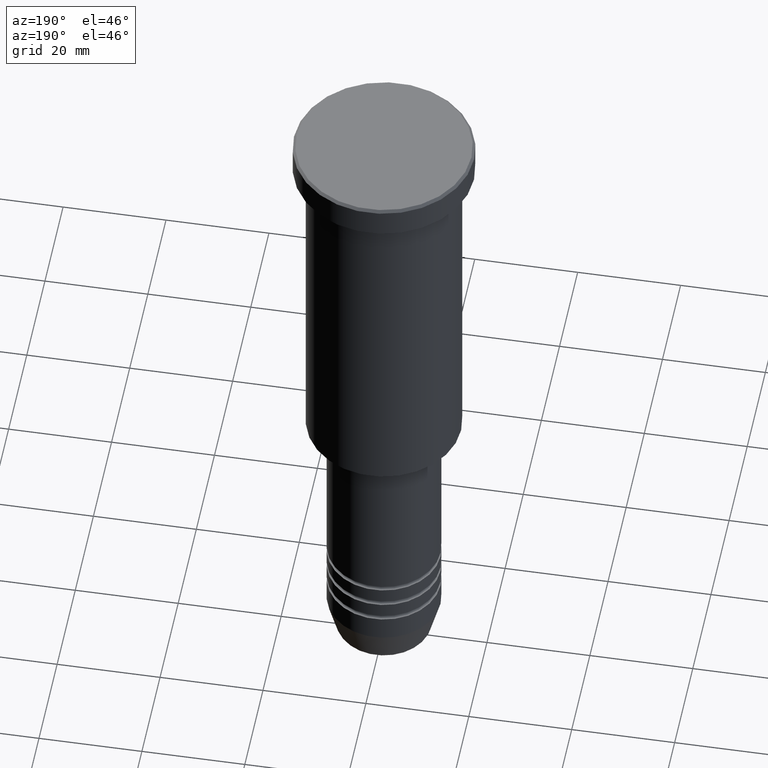
[diagram: clean part render]
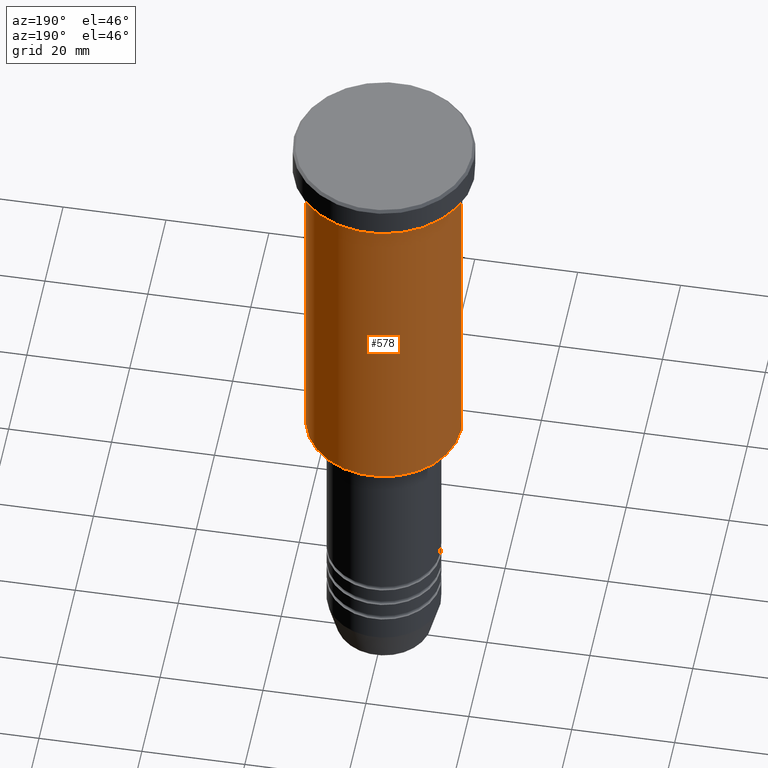
[diagram: same view with one face highlighted and labeled with its STEP entity id]
A machine part, auxiliary view. The second image highlights one B-rep face of the part: STEP entity #578.
In plain terms, the highlighted cylindrical surface (partial cylindrical patch) has radius 15 mm, axis along (-0, -0, 1).
Its self-contained STEP definition (entity closure, byte-faithful):
#89 = ORIENTED_EDGE ( 'NONE', *, *, #228, .F. ) ;
#199 = CARTESIAN_POINT ( 'NONE',  ( 0.000000000000000000, 0.000000000000000000, -6.999999999999995559 ) ) ;
#207 = DIRECTION ( 'NONE',  ( 1.000000000000000000, 0.000000000000000000, 0.000000000000000000 ) ) ;
#222 = CARTESIAN_POINT ( 'NONE',  ( 15.00000000000000000, 0.000000000000000000, 0.000000000000000000 ) ) ;
#228 = EDGE_CURVE ( 'NONE', #800, #318, #1106, .T. ) ;
#256 = EDGE_CURVE ( 'NONE', #928, #330, #777, .T. ) ;
#306 = ORIENTED_EDGE ( 'NONE', *, *, #861, .F. ) ;
#318 = VERTEX_POINT ( 'NONE', #400 ) ;
#320 = LINE ( 'NONE', #222, #782 ) ;
#330 = VERTEX_POINT ( 'NONE', #595 ) ;
#349 = DIRECTION ( 'NONE',  ( -0.000000000000000000, -0.000000000000000000, 1.000000000000000000 ) ) ;
#400 = CARTESIAN_POINT ( 'NONE',  ( -15.00000000000000000, 1.836970198721029589E-15, -6.999999999999995559 ) ) ;
#401 = ORIENTED_EDGE ( 'NONE', *, *, #985, .T. ) ;
#412 = CARTESIAN_POINT ( 'NONE',  ( 15.00000000000000000, 0.000000000000000000, -75.49999999999998579 ) ) ;
#429 = CARTESIAN_POINT ( 'NONE',  ( -15.00000000000000000, 1.836970198721029589E-15, 0.000000000000000000 ) ) ;
#477 = CARTESIAN_POINT ( 'NONE',  ( 0.000000000000000000, 0.000000000000000000, 0.000000000000000000 ) ) ;
#488 = DIRECTION ( 'NONE',  ( -1.000000000000000000, 0.000000000000000000, 0.000000000000000000 ) ) ;
#494 = DIRECTION ( 'NONE',  ( -0.000000000000000000, -0.000000000000000000, 1.000000000000000000 ) ) ;
#510 = AXIS2_PLACEMENT_3D ( 'NONE', #477, #1021, #207 ) ;
#542 = EDGE_LOOP ( 'NONE', ( #1052, #401, #89, #306 ) ) ;
#566 = DIRECTION ( 'NONE',  ( -0.000000000000000000, -0.000000000000000000, 1.000000000000000000 ) ) ;
#578 = ADVANCED_FACE ( 'NONE', ( #883 ), #664, .T. ) ;
#595 = CARTESIAN_POINT ( 'NONE',  ( -15.00000000000000000, 1.836970198721029589E-15, -75.49999999999998579 ) ) ;
#664 = CYLINDRICAL_SURFACE ( 'NONE', #510, 15.00000000000000000 ) ;
#677 = LINE ( 'NONE', #429, #1111 ) ;
#702 = AXIS2_PLACEMENT_3D ( 'NONE', #858, #1113, #488 ) ;
#738 = DIRECTION ( 'NONE',  ( 1.000000000000000000, 0.000000000000000000, 0.000000000000000000 ) ) ;
#777 = CIRCLE ( 'NONE', #702, 15.00000000000000000 ) ;
#782 = VECTOR ( 'NONE', #494, 1000.000000000000000 ) ;
#800 = VERTEX_POINT ( 'NONE', #1009 ) ;
#858 = CARTESIAN_POINT ( 'NONE',  ( 0.000000000000000000, 0.000000000000000000, -75.49999999999998579 ) ) ;
#861 = EDGE_CURVE ( 'NONE', #928, #800, #320, .T. ) ;
#883 = FACE_OUTER_BOUND ( 'NONE', #542, .T. ) ;
#928 = VERTEX_POINT ( 'NONE', #412 ) ;
#985 = EDGE_CURVE ( 'NONE', #330, #318, #677, .T. ) ;
#1009 = CARTESIAN_POINT ( 'NONE',  ( 15.00000000000000000, 0.000000000000000000, -6.999999999999995559 ) ) ;
#1021 = DIRECTION ( 'NONE',  ( -0.000000000000000000, -0.000000000000000000, 1.000000000000000000 ) ) ;
#1052 = ORIENTED_EDGE ( 'NONE', *, *, #256, .T. ) ;
#1091 = AXIS2_PLACEMENT_3D ( 'NONE', #199, #566, #738 ) ;
#1106 = CIRCLE ( 'NONE', #1091, 15.00000000000000000 ) ;
#1111 = VECTOR ( 'NONE', #349, 1000.000000000000000 ) ;
#1113 = DIRECTION ( 'NONE',  ( -0.000000000000000000, -0.000000000000000000, 1.000000000000000000 ) ) ;